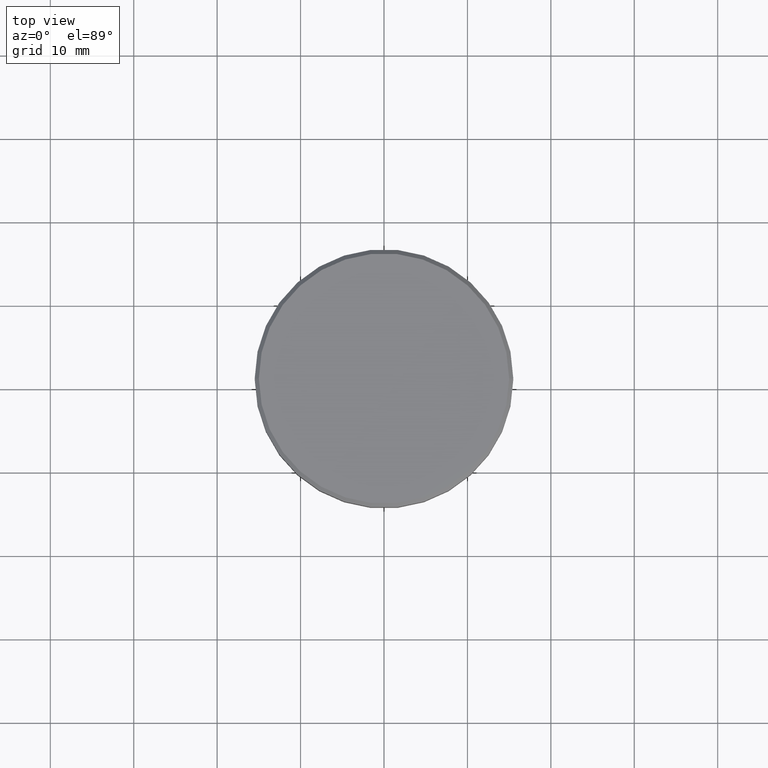
[diagram: clean part render]
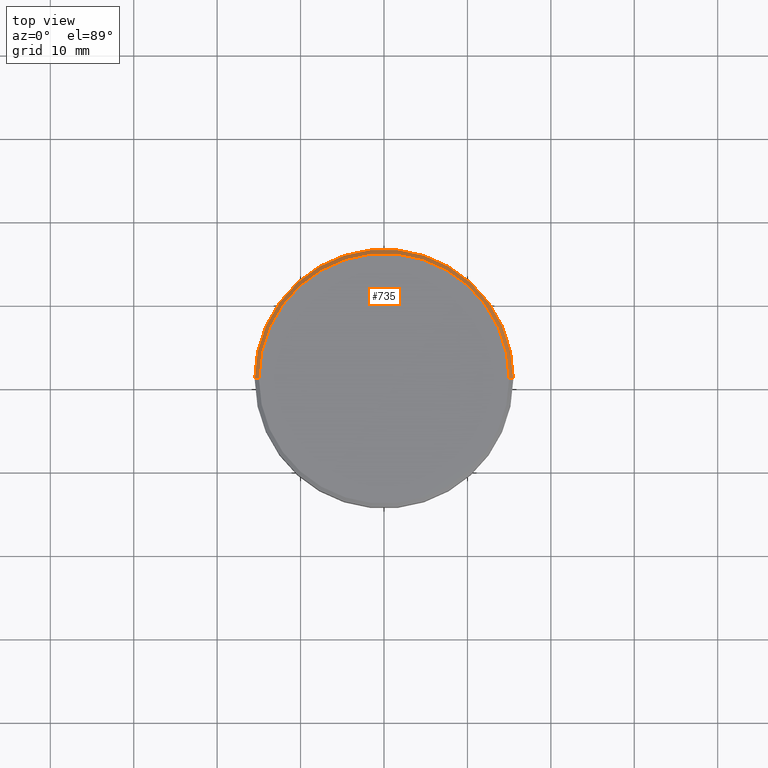
[diagram: same view with one face highlighted and labeled with its STEP entity id]
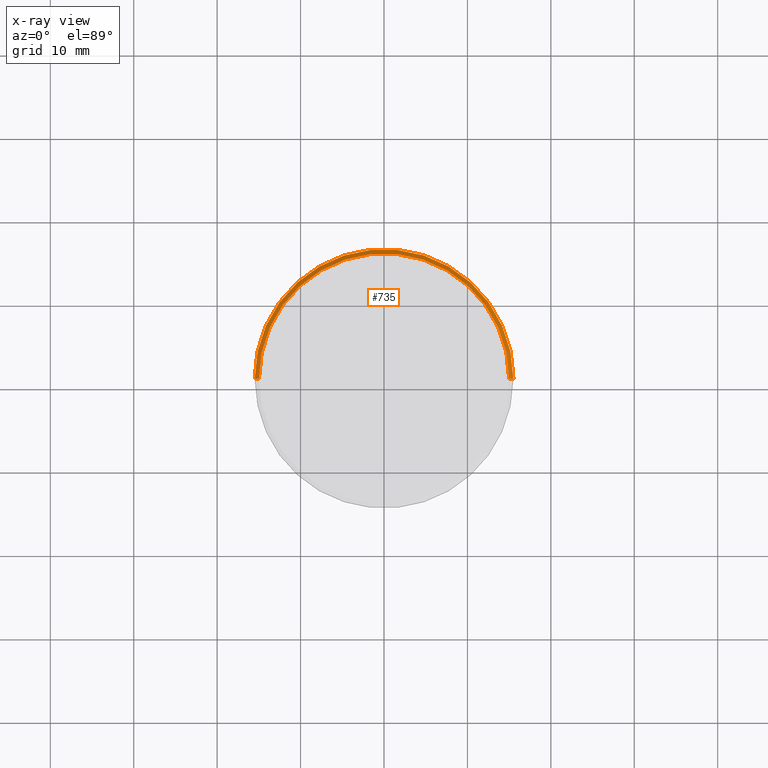
[diagram: x-ray of the same camera — body ghosted, the highlighted face saturated]
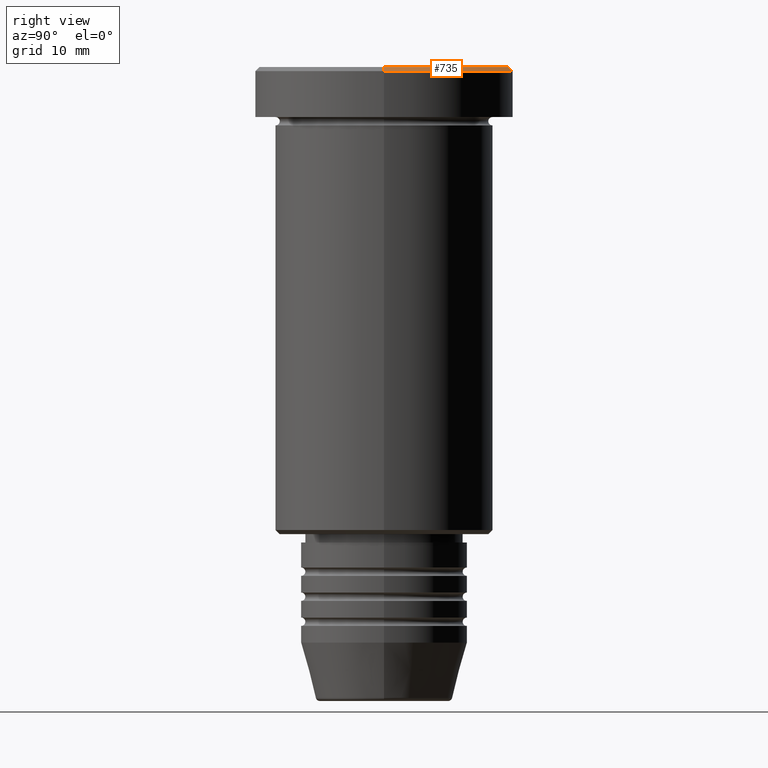
[diagram: same view with one face highlighted and labeled with its STEP entity id]
A machine part, top view. The second image highlights one B-rep face of the part: STEP entity #735.
The next image is the same camera in x-ray: the body ghosted, the highlighted face saturated — about 0% of this face is hidden behind the body in this view.
A second angle (right view) of the same face is appended — the face is thin or edge-on in the first view.
In plain terms, the highlighted conical surface has half-angle 45 deg.
Its self-contained STEP definition (entity closure, byte-faithful):
#13 = DIRECTION ( 'NONE',  ( -0.7071067811865389130, 0.000000000000000000, -0.7071067811865561215 ) ) ;
#28 = LINE ( 'NONE', #102, #321 ) ;
#61 = VERTEX_POINT ( 'NONE', #1136 ) ;
#67 = ORIENTED_EDGE ( 'NONE', *, *, #483, .F. ) ;
#87 = CARTESIAN_POINT ( 'NONE',  ( -15.50000000000000000, 1.898202538678397557E-15, -0.4999999999999987232 ) ) ;
#94 = DIRECTION ( 'NONE',  ( 0.000000000000000000, 0.000000000000000000, -1.000000000000000000 ) ) ;
#97 = ORIENTED_EDGE ( 'NONE', *, *, #690, .F. ) ;
#102 = CARTESIAN_POINT ( 'NONE',  ( -15.00000000000001421, 0.000000000000000000, 0.000000000000000000 ) ) ;
#113 = AXIS2_PLACEMENT_3D ( 'NONE', #1148, #967, #769 ) ;
#211 = AXIS2_PLACEMENT_3D ( 'NONE', #913, #721, #801 ) ;
#321 = VECTOR ( 'NONE', #13, 1000.000000000000000 ) ;
#357 = CIRCLE ( 'NONE', #211, 15.50000000000000000 ) ;
#363 = EDGE_CURVE ( 'NONE', #61, #561, #28, .T. ) ;
#379 = LINE ( 'NONE', #1014, #651 ) ;
#391 = DIRECTION ( 'NONE',  ( -1.000000000000000000, 0.000000000000000000, 0.000000000000000000 ) ) ;
#424 = CARTESIAN_POINT ( 'NONE',  ( 15.50000000000000000, 0.000000000000000000, -0.4999999999999987232 ) ) ;
#451 = VERTEX_POINT ( 'NONE', #424 ) ;
#483 = EDGE_CURVE ( 'NONE', #609, #61, #704, .T. ) ;
#512 = CONICAL_SURFACE ( 'NONE', #920, 15.00000000000001421, 0.7853981633974361776 ) ;
#561 = VERTEX_POINT ( 'NONE', #87 ) ;
#562 = DIRECTION ( 'NONE',  ( 0.7071067811865389130, 8.659560562354828088E-17, -0.7071067811865561215 ) ) ;
#563 = FACE_OUTER_BOUND ( 'NONE', #1132, .T. ) ;
#609 = VERTEX_POINT ( 'NONE', #705 ) ;
#651 = VECTOR ( 'NONE', #562, 1000.000000000000000 ) ;
#690 = EDGE_CURVE ( 'NONE', #561, #451, #357, .T. ) ;
#704 = CIRCLE ( 'NONE', #113, 15.00000000000001421 ) ;
#705 = CARTESIAN_POINT ( 'NONE',  ( 15.00000000000001421, 1.867586368699714559E-15, 0.000000000000000000 ) ) ;
#721 = DIRECTION ( 'NONE',  ( 0.000000000000000000, 0.000000000000000000, -1.000000000000000000 ) ) ;
#735 = ADVANCED_FACE ( 'NONE', ( #563 ), #512, .T. ) ;
#769 = DIRECTION ( 'NONE',  ( 1.000000000000000000, 0.000000000000000000, 0.000000000000000000 ) ) ;
#801 = DIRECTION ( 'NONE',  ( 1.000000000000000000, 0.000000000000000000, 0.000000000000000000 ) ) ;
#913 = CARTESIAN_POINT ( 'NONE',  ( 0.000000000000000000, 0.000000000000000000, -0.4999999999999987232 ) ) ;
#920 = AXIS2_PLACEMENT_3D ( 'NONE', #1101, #94, #391 ) ;
#967 = DIRECTION ( 'NONE',  ( -0.000000000000000000, -0.000000000000000000, 1.000000000000000000 ) ) ;
#1014 = CARTESIAN_POINT ( 'NONE',  ( 15.00000000000001421, 1.836970198721031561E-15, 0.000000000000000000 ) ) ;
#1028 = ORIENTED_EDGE ( 'NONE', *, *, #363, .F. ) ;
#1101 = CARTESIAN_POINT ( 'NONE',  ( 0.000000000000000000, 0.000000000000000000, 0.000000000000000000 ) ) ;
#1132 = EDGE_LOOP ( 'NONE', ( #67, #1172, #97, #1028 ) ) ;
#1136 = CARTESIAN_POINT ( 'NONE',  ( -15.00000000000001421, 0.000000000000000000, 0.000000000000000000 ) ) ;
#1148 = CARTESIAN_POINT ( 'NONE',  ( 0.000000000000000000, 0.000000000000000000, 0.000000000000000000 ) ) ;
#1154 = EDGE_CURVE ( 'NONE', #609, #451, #379, .T. ) ;
#1172 = ORIENTED_EDGE ( 'NONE', *, *, #1154, .T. ) ;